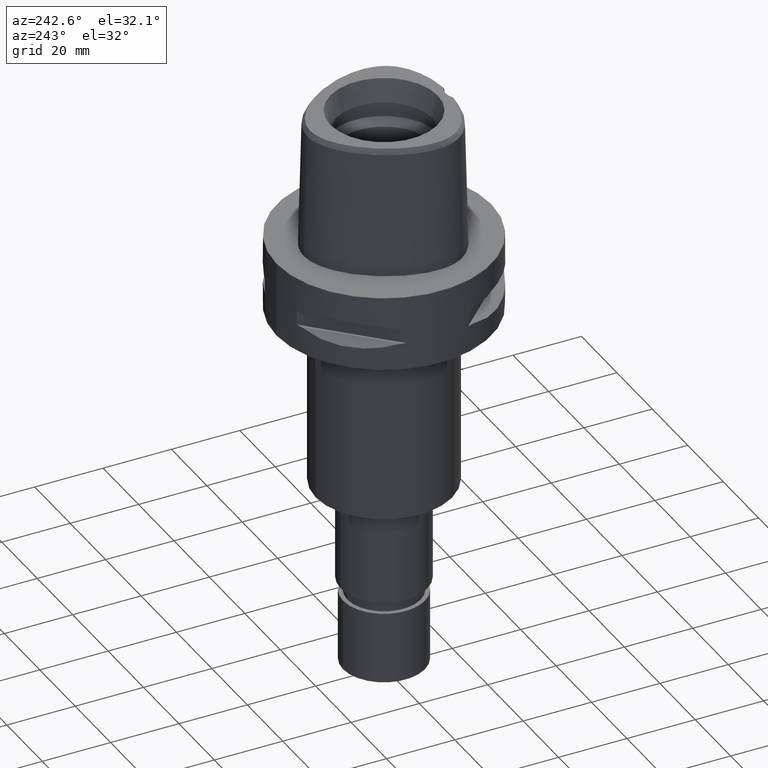
[diagram: clean part render]
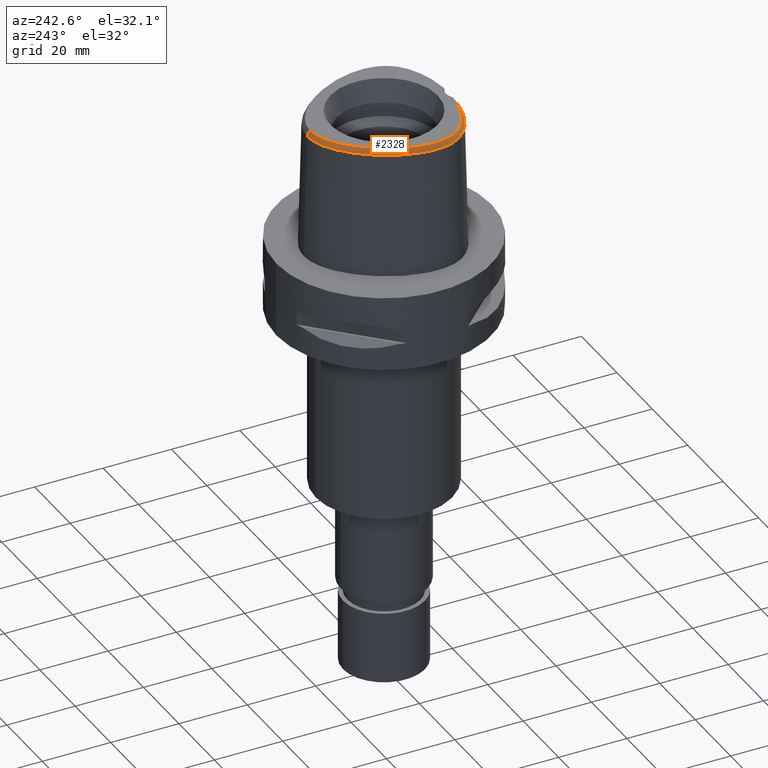
[diagram: same view with one face highlighted and labeled with its STEP entity id]
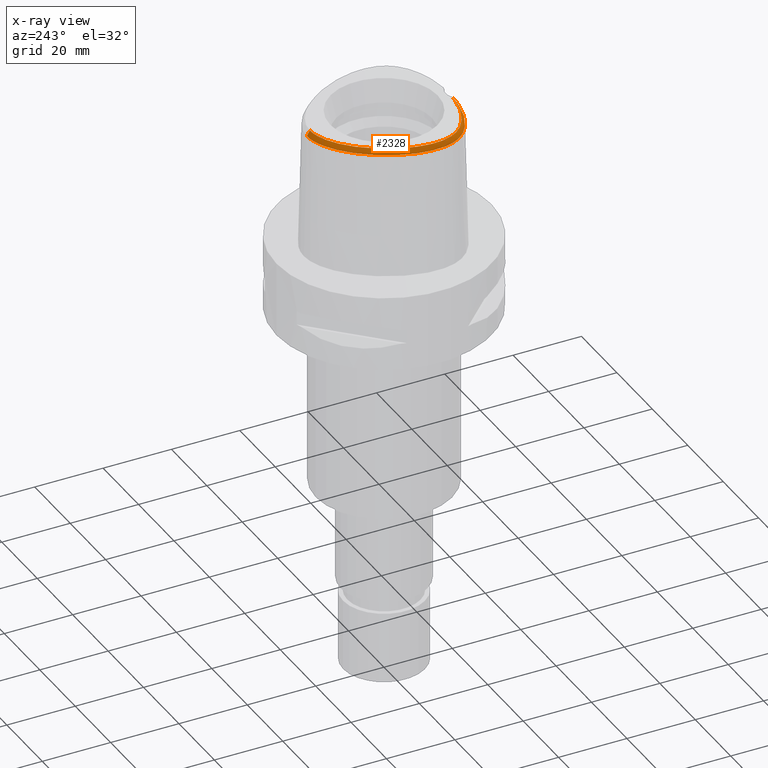
[diagram: x-ray of the same camera — body ghosted, the highlighted face saturated]
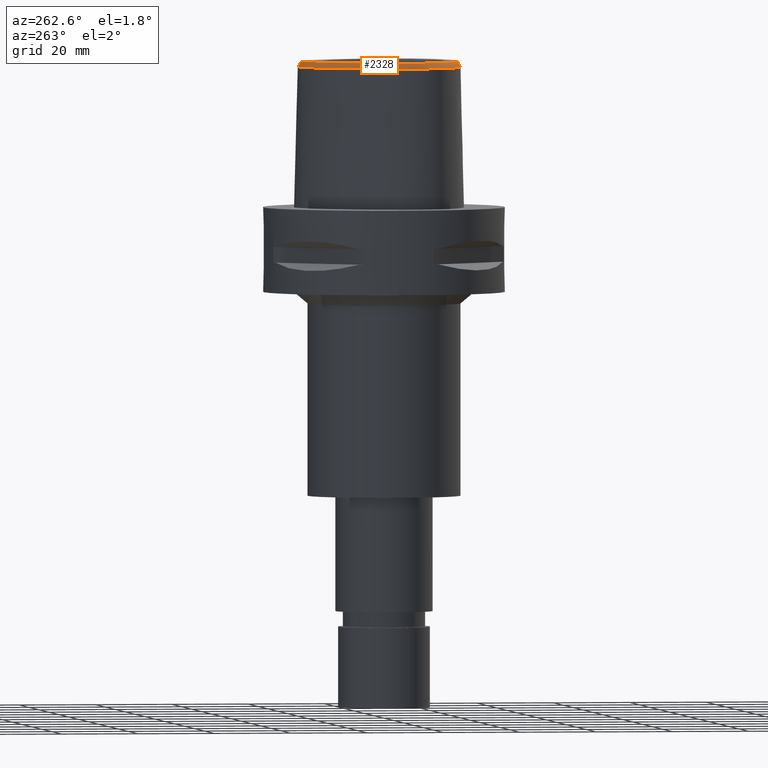
[diagram: same view with one face highlighted and labeled with its STEP entity id]
A machine part, auxiliary view. The second image highlights one B-rep face of the part: STEP entity #2328.
The next image is the same camera in x-ray: the body ghosted, the highlighted face saturated — about 0% of this face is hidden behind the body in this view.
A second angle (auxiliary view) of the same face is appended — the face is thin or edge-on in the first view.
In plain terms, the highlighted face is a freeform B-spline surface patch.
Its self-contained STEP definition (entity closure, byte-faithful):
#34=CARTESIAN_POINT('',(-2.682279906005E0,-1.878035848610E1,3.8E1));
#35=CARTESIAN_POINT('',(-3.581033632346E0,-1.870842610940E1,3.8E1));
#36=CARTESIAN_POINT('',(-5.296895999913E0,-1.849905146038E1,3.8E1));
#37=CARTESIAN_POINT('',(-7.685183829589E0,-1.800849905179E1,3.8E1));
#38=CARTESIAN_POINT('',(-9.720771337483E0,-1.741640543486E1,3.8E1));
#39=CARTESIAN_POINT('',(-1.149451917984E1,-1.674960232655E1,3.8E1));
#40=CARTESIAN_POINT('',(-1.309320880070E1,-1.599773148590E1,3.8E1));
#41=CARTESIAN_POINT('',(-1.453850266553E1,-1.515722875674E1,3.8E1));
#42=CARTESIAN_POINT('',(-1.578553739558E1,-1.426491936918E1,3.8E1));
#43=CARTESIAN_POINT('',(-1.682805215259E1,-1.335253492330E1,3.8E1));
#44=CARTESIAN_POINT('',(-1.769237732448E1,-1.242644257241E1,3.8E1));
#45=CARTESIAN_POINT('',(-1.839813952926E1,-1.149359106538E1,3.8E1));
#46=CARTESIAN_POINT('',(-1.897579344600E1,-1.053513049665E1,3.8E1));
#47=CARTESIAN_POINT('',(-1.946017900295E1,-9.494047453883E0,3.8E1));
#48=CARTESIAN_POINT('',(-1.986149102239E1,-8.328354201316E0,3.8E1));
#49=CARTESIAN_POINT('',(-2.016637981519E1,-7.023453910905E0,3.8E1));
#50=CARTESIAN_POINT('',(-2.035997281465E1,-5.554589756597E0,3.8E1));
#51=CARTESIAN_POINT('',(-2.041634362561E1,-3.915509615332E0,3.8E1));
#52=CARTESIAN_POINT('',(-2.032096577095E1,-2.193756906184E0,3.8E1));
#53=CARTESIAN_POINT('',(-2.006841841181E1,-3.635727318218E-1,3.8E1));
#54=CARTESIAN_POINT('',(-1.963687375141E1,1.618197539285E0,3.8E1));
#55=CARTESIAN_POINT('',(-1.895930405091E1,3.863967492561E0,3.8E1));
#56=CARTESIAN_POINT('',(-1.801105530745E1,6.268459519330E0,3.8E1));
#57=CARTESIAN_POINT('',(-1.683066373707E1,8.670336546881E0,3.8E1));
#58=CARTESIAN_POINT('',(-1.544948284181E1,1.099156094956E1,3.8E1));
#59=CARTESIAN_POINT('',(-1.391069721256E1,1.316090024534E1,3.8E1));
#60=CARTESIAN_POINT('',(-1.228767653543E1,1.509111200333E1,3.8E1));
#61=CARTESIAN_POINT('',(-1.072826750302E1,1.666671300340E1,3.8E1));
#62=CARTESIAN_POINT('',(-9.246767756958E0,1.794929975472E1,3.8E1));
#63=CARTESIAN_POINT('',(-7.795441401697E0,1.901859490771E1,3.8E1));
#64=CARTESIAN_POINT('',(-6.347018265173E0,1.990819694629E1,3.8E1));
#65=CARTESIAN_POINT('',(-4.926962864640E0,2.060984324959E1,3.8E1));
#66=CARTESIAN_POINT('',(-3.582813724723E0,2.111837064672E1,3.8E1));
#67=CARTESIAN_POINT('',(-2.324294981468E0,2.145537092580E1,3.8E1));
#68=CARTESIAN_POINT('',(-1.137912019530E0,2.164625887090E1,3.8E1));
#69=CARTESIAN_POINT('',(-3.736696491837E-1,2.168728795389E1,3.8E1));
#70=CARTESIAN_POINT('',(-3.470944899452E-11,2.168728795390E1,3.8E1));
#182=CARTESIAN_POINT('',(-2.682279906005E0,-1.878035848610E1,3.8E1));
#183=CARTESIAN_POINT('',(-2.795758654787E0,-1.885249299483E1,3.786319539838E1));
#184=CARTESIAN_POINT('',(-3.018631758239E0,-1.900705370838E1,3.757102078228E1));
#185=CARTESIAN_POINT('',(-3.337323225536E0,-1.926900378730E1,3.707980119574E1));
#186=CARTESIAN_POINT('',(-3.539775253109E0,-1.946582670736E1,3.671396671414E1));
#187=CARTESIAN_POINT('',(-3.637738201364E0,-1.956971413237E1,3.652186244848E1));
#192=CARTESIAN_POINT('',(-3.637738201364E0,-1.956971413237E1,3.652186244848E1));
#193=CARTESIAN_POINT('',(-4.560158907346E0,-1.947143337625E1,3.652183460621E1));
#194=CARTESIAN_POINT('',(-6.332490901644E0,-1.920572733587E1,3.652188379830E1));
#195=CARTESIAN_POINT('',(-8.740534769296E0,-1.863605197490E1,3.652185473939E1));
#196=CARTESIAN_POINT('',(-1.078875333779E1,-1.797109471699E1,3.652187883629E1));
#197=CARTESIAN_POINT('',(-1.260106402785E1,-1.721902815734E1,3.652186366389E1));
#198=CARTESIAN_POINT('',(-1.425647951327E1,-1.635855614140E1,3.652186983084E1));
#199=CARTESIAN_POINT('',(-1.570742126751E1,-1.542180822191E1,3.652187070094E1));
#200=CARTESIAN_POINT('',(-1.692838495225E1,-1.445243579093E1,3.652186371196E1));
#201=CARTESIAN_POINT('',(-1.794807955122E1,-1.346119101780E1,3.652187504976E1));
#202=CARTESIAN_POINT('',(-1.879347921895E1,-1.244911691061E1,3.652185110221E1));
#203=CARTESIAN_POINT('',(-1.948233597599E1,-1.142172722407E1,3.652186520296E1));
#204=CARTESIAN_POINT('',(-2.005025596415E1,-1.033879974977E1,3.652187120918E1));
#205=CARTESIAN_POINT('',(-2.052689249114E1,-9.137426659141E0,3.652187389002E1));
#206=CARTESIAN_POINT('',(-2.090372515842E1,-7.793064566768E0,3.652186861290E1));
#207=CARTESIAN_POINT('',(-2.116402580445E1,-6.298266466778E0,3.652186520813E1));
#208=CARTESIAN_POINT('',(-2.128915805881E1,-4.610628511458E0,3.652187207782E1));
#209=CARTESIAN_POINT('',(-2.124899103472E1,-2.770628323703E0,3.652186448572E1));
#210=CARTESIAN_POINT('',(-2.103746568196E1,-8.521470214658E-1,
3.652186904573E1));
#211=CARTESIAN_POINT('',(-2.064453108235E1,1.191621979844E0,3.652186470490E1));
#212=CARTESIAN_POINT('',(-2.000834842177E1,3.491890258725E0,3.652186280489E1));
#213=CARTESIAN_POINT('',(-1.908297293211E1,5.996252166364E0,3.652187047901E1));
#214=CARTESIAN_POINT('',(-1.790343325696E1,8.519299290575E0,3.652185757552E1));
#215=CARTESIAN_POINT('',(-1.649956399231E1,1.097698504016E1,3.652186524308E1));
#216=CARTESIAN_POINT('',(-1.492053239747E1,1.328144481386E1,3.652186970709E1));
#217=CARTESIAN_POINT('',(-1.322428615311E1,1.536354361130E1,3.652186377725E1));
#218=CARTESIAN_POINT('',(-1.153399233131E1,1.711359257375E1,3.652186042581E1));
#219=CARTESIAN_POINT('',(-9.949618507775E0,1.850927678704E1,3.652187154028E1));
#220=CARTESIAN_POINT('',(-8.389884192782E0,1.967566957136E1,3.652186493940E1));
#221=CARTESIAN_POINT('',(-6.831967983638E0,2.064216380886E1,3.652187265771E1));
#222=CARTESIAN_POINT('',(-5.310871754551E0,2.139896711785E1,3.652186762590E1));
#223=CARTESIAN_POINT('',(-3.868196932843E0,2.194740320780E1,3.652186656051E1));
#224=CARTESIAN_POINT('',(-2.510941578303E0,2.231222700870E1,3.652187435400E1));
#225=CARTESIAN_POINT('',(-1.219201044760E0,2.251876035111E1,3.652180035304E1));
#226=CARTESIAN_POINT('',(-4.071750475777E-1,2.256201468012E1,3.652186680743E1));
#227=CARTESIAN_POINT('',(-1.721533821430E-11,2.256201468012E1,
3.652186680744E1));
#232=DIRECTION('',(-1.018542264983E-11,-5.092834681090E-1,8.605988316927E-1));
#233=VECTOR('',#232,1.717563559379E0);
#234=CARTESIAN_POINT('',(-1.721533821430E-11,2.256201468012E1,
3.652186680744E1));
#235=LINE('',#234,#233);
#239=CARTESIAN_POINT('',(-3.637738201364E0,-1.956971413237E1,3.652186244848E1));
#1585=CARTESIAN_POINT('',(-2.682279906007E0,-1.878035848610E1,3.8E1));
#1587=VERTEX_POINT('',#1585);
#1590=VERTEX_POINT('',#70);
#1601=VERTEX_POINT('',#239);
#1602=CARTESIAN_POINT('',(-1.721533821430E-11,2.256201468012E1,
3.652186680744E1));
#1603=VERTEX_POINT('',#1602);
#2072=CARTESIAN_POINT('',(5.881146186496E-1,2.155492564373E1,3.819712059668E1));
#2073=CARTESIAN_POINT('',(6.086003124611E-1,2.192369050687E1,3.757298327064E1));
#2074=CARTESIAN_POINT('',(6.290860062726E-1,2.229245537E1,3.694884594460E1));
#2075=CARTESIAN_POINT('',(6.495717000841E-1,2.266122023314E1,3.632470861857E1));
#2076=CARTESIAN_POINT('',(3.870022067716E-1,2.156531915041E1,3.819712053891E1));
#2077=CARTESIAN_POINT('',(4.007257356409E-1,2.193447609883E1,3.757298339577E1));
#2078=CARTESIAN_POINT('',(4.144492645101E-1,2.230363304725E1,3.694884625263E1));
#2079=CARTESIAN_POINT('',(4.281727933794E-1,2.267278999567E1,3.632470910949E1));
#2080=CARTESIAN_POINT('',(-2.530560245784E-2,2.157659429463E1,
3.819712049908E1));
#2081=CARTESIAN_POINT('',(-2.610917299454E-2,2.194616183287E1,
3.757298348205E1));
#2082=CARTESIAN_POINT('',(-2.691274353124E-2,2.231572937112E1,
3.694884646503E1));
#2083=CARTESIAN_POINT('',(-2.771631406794E-2,2.268529690936E1,
3.632470944800E1));
#2084=CARTESIAN_POINT('',(-6.425851668436E-1,2.155728472357E1,
3.819712056729E1));
#2085=CARTESIAN_POINT('',(-6.657427740693E-1,2.192614909446E1,
3.757298333429E1));
#2086=CARTESIAN_POINT('',(-6.889003812949E-1,2.229501346534E1,
3.694884610128E1));
#2087=CARTESIAN_POINT('',(-7.120579885206E-1,2.266387783623E1,
3.632470886828E1));
#2088=CARTESIAN_POINT('',(-1.309163881031E0,2.149516861359E1,3.819712060906E1));
#2089=CARTESIAN_POINT('',(-1.355108569075E0,2.186188579666E1,3.757298324381E1));
#2090=CARTESIAN_POINT('',(-1.401053257120E0,2.222860297973E1,3.694884587857E1));
#2091=CARTESIAN_POINT('',(-1.446997945164E0,2.259532016280E1,3.632470851332E1));
#2092=CARTESIAN_POINT('',(-1.995451209940E0,2.138809580240E1,3.819712054008E1));
#2093=CARTESIAN_POINT('',(-2.063760249049E0,2.175130669348E1,3.757298339324E1));
#2094=CARTESIAN_POINT('',(-2.132069288157E0,2.211451758456E1,3.694884624640E1));
#2095=CARTESIAN_POINT('',(-2.200378327266E0,2.247772847564E1,3.632470909956E1));
#2096=CARTESIAN_POINT('',(-2.707245596687E0,2.123239070980E1,3.819712046764E1));
#2097=CARTESIAN_POINT('',(-2.797334409701E0,2.159081365361E1,3.757298355018E1));
#2098=CARTESIAN_POINT('',(-2.887423222716E0,2.194923659742E1,3.694884663273E1));
#2099=CARTESIAN_POINT('',(-2.977512035730E0,2.230765954124E1,3.632470971528E1));
#2100=CARTESIAN_POINT('',(-3.445893782799E0,2.102378859681E1,3.819712048326E1));
#2101=CARTESIAN_POINT('',(-3.557104068800E0,2.137622302183E1,3.757298351631E1));
#2102=CARTESIAN_POINT('',(-3.668314354802E0,2.172865744685E1,3.694884654936E1));
#2103=CARTESIAN_POINT('',(-3.779524640804E0,2.208109187187E1,3.632470958242E1));
#2104=CARTESIAN_POINT('',(-4.213001139977E0,2.075753412769E1,3.819712054148E1));
#2105=CARTESIAN_POINT('',(-4.344585066537E0,2.110287147321E1,3.757298339021E1));
#2106=CARTESIAN_POINT('',(-4.476168993097E0,2.144820881872E1,3.694884623893E1));
#2107=CARTESIAN_POINT('',(-4.607752919656E0,2.179354616424E1,3.632470908766E1));
#2108=CARTESIAN_POINT('',(-5.010483071430E0,2.042794996212E1,3.819712047826E1));
#2109=CARTESIAN_POINT('',(-5.161632608433E0,2.076517410657E1,3.757298352715E1));
#2110=CARTESIAN_POINT('',(-5.312782145436E0,2.110239825103E1,3.694884657605E1));
#2111=CARTESIAN_POINT('',(-5.463931682439E0,2.143962239549E1,3.632470962494E1));
#2112=CARTESIAN_POINT('',(-5.839905439890E0,2.002869795237E1,3.819712046142E1));
#2113=CARTESIAN_POINT('',(-6.009738105652E0,2.035690112058E1,3.757298356365E1));
#2114=CARTESIAN_POINT('',(-6.179570771414E0,2.068510428879E1,3.694884666587E1));
#2115=CARTESIAN_POINT('',(-6.349403437177E0,2.101330745700E1,3.632470976810E1));
#2116=CARTESIAN_POINT('',(-6.700174966968E0,1.955400235270E1,3.819712053769E1));
#2117=CARTESIAN_POINT('',(-6.887804434349E0,1.987235756574E1,3.757298339841E1));
#2118=CARTESIAN_POINT('',(-7.075433901729E0,2.019071277877E1,3.694884625914E1));
#2119=CARTESIAN_POINT('',(-7.263063369110E0,2.050906799181E1,3.632470911986E1));
#2120=CARTESIAN_POINT('',(-7.590635809381E0,1.899731763166E1,3.819712053322E1));
#2121=CARTESIAN_POINT('',(-7.795135976279E0,1.930509809371E1,3.757298340809E1));
#2122=CARTESIAN_POINT('',(-7.999636143177E0,1.961287855575E1,3.694884628296E1));
#2123=CARTESIAN_POINT('',(-8.204136310075E0,1.992065901780E1,3.632470915783E1));
#2124=CARTESIAN_POINT('',(-8.508596761114E0,1.835290570132E1,3.819712060186E1));
#2125=CARTESIAN_POINT('',(-8.729044516167E0,1.864946429299E1,3.757298325943E1));
#2126=CARTESIAN_POINT('',(-8.949492271221E0,1.894602288465E1,3.694884591700E1));
#2127=CARTESIAN_POINT('',(-9.169940026274E0,1.924258147632E1,3.632470857456E1));
#2128=CARTESIAN_POINT('',(-9.449960326701E0,1.761565401244E1,3.819712035337E1));
#2129=CARTESIAN_POINT('',(-9.685457947378E0,1.790039970142E1,3.757298379771E1));
#2130=CARTESIAN_POINT('',(-9.920955568055E0,1.818514539039E1,3.694884724206E1));
#2131=CARTESIAN_POINT('',(-1.015645318873E1,1.846989107937E1,3.632471068640E1));
#2132=CARTESIAN_POINT('',(-1.041078702528E1,1.678027360334E1,3.819712005475E1));
#2133=CARTESIAN_POINT('',(-1.066040701160E1,1.705271521063E1,3.757298444461E1));
#2134=CARTESIAN_POINT('',(-1.091002699791E1,1.732515681793E1,3.694884883447E1));
#2135=CARTESIAN_POINT('',(-1.115964698422E1,1.759759842522E1,3.632471322432E1));
#2136=CARTESIAN_POINT('',(-1.138261936161E1,1.584540111276E1,3.819712007846E1));
#2137=CARTESIAN_POINT('',(-1.164548918414E1,1.610507429621E1,3.757298439322E1));
#2138=CARTESIAN_POINT('',(-1.190835900666E1,1.636474747966E1,3.694884870799E1));
#2139=CARTESIAN_POINT('',(-1.217122882919E1,1.662442066311E1,3.632471302275E1));
#2140=CARTESIAN_POINT('',(-1.235423087607E1,1.481343870966E1,3.819712043291E1));
#2141=CARTESIAN_POINT('',(-1.262950049317E1,1.505992270076E1,3.757298362541E1));
#2142=CARTESIAN_POINT('',(-1.290477011026E1,1.530640669186E1,3.694884681792E1));
#2143=CARTESIAN_POINT('',(-1.318003972735E1,1.555289068296E1,3.632471001043E1));
#2144=CARTESIAN_POINT('',(-1.331375292466E1,1.368913724268E1,3.819712059995E1));
#2145=CARTESIAN_POINT('',(-1.360062814837E1,1.392200570547E1,3.757298326354E1));
#2146=CARTESIAN_POINT('',(-1.388750337207E1,1.415487416827E1,3.694884592714E1));
#2147=CARTESIAN_POINT('',(-1.417437859578E1,1.438774263106E1,3.632470859073E1));
#2148=CARTESIAN_POINT('',(-1.425000952949E1,1.247848813243E1,3.819712045138E1));
#2149=CARTESIAN_POINT('',(-1.454768448640E1,1.269737746036E1,3.757298358538E1));
#2150=CARTESIAN_POINT('',(-1.484535944331E1,1.291626678830E1,3.694884671937E1));
#2151=CARTESIAN_POINT('',(-1.514303440022E1,1.313515611623E1,3.632470985337E1));
#2152=CARTESIAN_POINT('',(-1.514973705090E1,1.119258029649E1,3.819712041728E1));
#2153=CARTESIAN_POINT('',(-1.545745976592E1,1.139710019934E1,3.757298365926E1));
#2154=CARTESIAN_POINT('',(-1.576518248093E1,1.160162010218E1,3.694884690124E1));
#2155=CARTESIAN_POINT('',(-1.607290519594E1,1.180614000503E1,3.632471014323E1));
#2156=CARTESIAN_POINT('',(-1.599793005242E1,9.848810828626E0,3.819712053598E1));
#2157=CARTESIAN_POINT('',(-1.631496726785E1,1.003857081405E1,3.757298340214E1));
#2158=CARTESIAN_POINT('',(-1.663200448328E1,1.022833079948E1,3.694884626831E1));
#2159=CARTESIAN_POINT('',(-1.694904169871E1,1.041809078490E1,3.632470913448E1));
#2160=CARTESIAN_POINT('',(-1.678362777425E1,8.462691145752E0,3.819712049158E1));
#2161=CARTESIAN_POINT('',(-1.710928281791E1,8.637248632147E0,3.757298349832E1));
#2162=CARTESIAN_POINT('',(-1.743493786157E1,8.811806118542E0,3.694884650506E1));
#2163=CARTESIAN_POINT('',(-1.776059290522E1,8.986363604936E0,3.632470951180E1));
#2164=CARTESIAN_POINT('',(-1.749892736161E1,7.048566892456E0,3.819712041379E1));
#2165=CARTESIAN_POINT('',(-1.783246920586E1,7.207537920691E0,3.757298366680E1));
#2166=CARTESIAN_POINT('',(-1.816601105011E1,7.366508948926E0,3.694884691982E1));
#2167=CARTESIAN_POINT('',(-1.849955289436E1,7.525479977162E0,3.632471017283E1));
#2168=CARTESIAN_POINT('',(-1.813541688461E1,5.626090014396E0,3.819712049820E1));
#2169=CARTESIAN_POINT('',(-1.847614192410E1,5.769023610714E0,3.757298348395E1));
#2170=CARTESIAN_POINT('',(-1.881686696360E1,5.911957207032E0,3.694884646970E1));
#2171=CARTESIAN_POINT('',(-1.915759200309E1,6.054890803350E0,3.632470945544E1));
#2172=CARTESIAN_POINT('',(-1.868684547992E1,4.216327090106E0,3.819712061243E1));
#2173=CARTESIAN_POINT('',(-1.903403774774E1,4.342752649951E0,3.757298323650E1));
#2174=CARTESIAN_POINT('',(-1.938123001557E1,4.469178209796E0,3.694884586056E1));
#2175=CARTESIAN_POINT('',(-1.972842228340E1,4.595603769642E0,3.632470848463E1));
#2176=CARTESIAN_POINT('',(-1.915177999049E1,2.834016450406E0,3.819712028754E1));
#2177=CARTESIAN_POINT('',(-1.950470827436E1,2.943425192079E0,3.757298394033E1));
#2178=CARTESIAN_POINT('',(-1.985763655823E1,3.052833933752E0,3.694884759313E1));
#2179=CARTESIAN_POINT('',(-2.021056484211E1,3.162242675426E0,3.632471124592E1));
#2180=CARTESIAN_POINT('',(-1.953130831925E1,1.491227735275E0,3.819712002406E1));
#2181=CARTESIAN_POINT('',(-1.988919903961E1,1.583130830926E0,3.757298451107E1));
#2182=CARTESIAN_POINT('',(-2.024708975998E1,1.675033926577E0,3.694884899807E1));
#2183=CARTESIAN_POINT('',(-2.060498048035E1,1.766937022228E0,3.632471348508E1));
#2184=CARTESIAN_POINT('',(-1.982754407446E1,2.009248548460E-1,
3.819712011517E1));
#2185=CARTESIAN_POINT('',(-2.018959311254E1,2.747928357125E-1,
3.757298431373E1));
#2186=CARTESIAN_POINT('',(-2.055164215061E1,3.486608165789E-1,
3.694884851229E1));
#2187=CARTESIAN_POINT('',(-2.091369118869E1,4.225287974454E-1,
3.632471271086E1));
#2188=CARTESIAN_POINT('',(-2.004474096797E1,-1.027165604236E0,
3.819712047651E1));
#2189=CARTESIAN_POINT('',(-2.041009296741E1,-9.718589794746E-1,
3.757298353097E1));
#2190=CARTESIAN_POINT('',(-2.077544496686E1,-9.165523547127E-1,
3.694884658542E1));
#2191=CARTESIAN_POINT('',(-2.114079696631E1,-8.612457299508E-1,
3.632470963988E1));
#2192=CARTESIAN_POINT('',(-2.018883981521E1,-2.188808803387E0,
3.819712059138E1));
#2193=CARTESIAN_POINT('',(-2.055658447264E1,-2.152618614271E0,
3.757298328212E1));
#2194=CARTESIAN_POINT('',(-2.092432913006E1,-2.116428425155E0,
3.694884597286E1));
#2195=CARTESIAN_POINT('',(-2.129207378749E1,-2.080238236039E0,
3.632470866360E1));
#2196=CARTESIAN_POINT('',(-2.026642550804E1,-3.283591320968E0,
3.819712054239E1));
#2197=CARTESIAN_POINT('',(-2.063558004579E1,-3.266979580038E0,
3.757298338826E1));
#2198=CARTESIAN_POINT('',(-2.100473458353E1,-3.250367839107E0,
3.694884623413E1));
#2199=CARTESIAN_POINT('',(-2.137388912127E1,-3.233756098177E0,3.632470908E1));
#2200=CARTESIAN_POINT('',(-2.028389722785E1,-4.310328357565E0,
3.819712051797E1));
#2201=CARTESIAN_POINT('',(-2.065341705135E1,-4.313777211876E0,
3.757298344115E1));
#2202=CARTESIAN_POINT('',(-2.102293687486E1,-4.317226066188E0,
3.694884636432E1));
#2203=CARTESIAN_POINT('',(-2.139245669836E1,-4.320674920500E0,
3.632470928749E1));
#2204=CARTESIAN_POINT('',(-2.024751849762E1,-5.270920517464E0,
3.819712041811E1));
#2205=CARTESIAN_POINT('',(-2.061628777165E1,-5.294826530958E0,
3.757298365745E1));
#2206=CARTESIAN_POINT('',(-2.098505704569E1,-5.318732544453E0,
3.694884689679E1));
#2207=CARTESIAN_POINT('',(-2.135382631972E1,-5.342638557947E0,
3.632471013613E1));
#2208=CARTESIAN_POINT('',(-2.016312792216E1,-6.167802523794E0,
3.819712048286E1));
#2209=CARTESIAN_POINT('',(-2.052996546659E1,-6.212507308574E0,
3.757298351719E1));
#2210=CARTESIAN_POINT('',(-2.089680301102E1,-6.257212093354E0,
3.694884655151E1));
#2211=CARTESIAN_POINT('',(-2.126364055544E1,-6.301916878133E0,
3.632470958584E1));
#2212=CARTESIAN_POINT('',(-2.003604753836E1,-7.003450881571E0,
3.819712056045E1));
#2213=CARTESIAN_POINT('',(-2.039970463311E1,-7.069235770501E0,
3.757298334913E1));
#2214=CARTESIAN_POINT('',(-2.076336172786E1,-7.135020659431E0,
3.694884613780E1));
#2215=CARTESIAN_POINT('',(-2.112701882260E1,-7.200805548361E0,
3.632470892648E1));
#2216=CARTESIAN_POINT('',(-1.987075703759E1,-7.782414849049E0,
3.819712055379E1));
#2217=CARTESIAN_POINT('',(-2.022993212953E1,-7.869436800255E0,
3.757298336354E1));
#2218=CARTESIAN_POINT('',(-2.058910722147E1,-7.956458751461E0,
3.694884617330E1));
#2219=CARTESIAN_POINT('',(-2.094828231341E1,-8.043480702667E0,
3.632470898305E1));
#2220=CARTESIAN_POINT('',(-1.967102550290E1,-8.508938075742E0,
3.819712054132E1));
#2221=CARTESIAN_POINT('',(-2.002437065368E1,-8.617252793862E0,
3.757298339056E1));
#2222=CARTESIAN_POINT('',(-2.037771580447E1,-8.725567511983E0,
3.694884623981E1));
#2223=CARTESIAN_POINT('',(-2.073106095526E1,-8.833882230103E0,
3.632470908905E1));
#2224=CARTESIAN_POINT('',(-1.943988073621E1,-9.187254919222E0,
3.819712048283E1));
#2225=CARTESIAN_POINT('',(-1.978601275548E1,-9.316802510027E0,
3.757298351727E1));
#2226=CARTESIAN_POINT('',(-2.013214477475E1,-9.446350100832E0,
3.694884655170E1));
#2227=CARTESIAN_POINT('',(-2.047827679402E1,-9.575897691637E0,
3.632470958614E1));
#2228=CARTESIAN_POINT('',(-1.917931777369E1,-9.822127651237E0,
3.819712051581E1));
#2229=CARTESIAN_POINT('',(-1.951684008799E1,-9.972699057747E0,
3.757298344581E1));
#2230=CARTESIAN_POINT('',(-1.985436240230E1,-1.012327046426E1,
3.694884637581E1));
#2231=CARTESIAN_POINT('',(-2.019188471661E1,-1.027384187077E1,
3.632470930580E1));
#2232=CARTESIAN_POINT('',(-1.889176533938E1,-1.041560024431E1,
3.819712057299E1));
#2233=CARTESIAN_POINT('',(-1.921929542640E1,-1.058684232277E1,
3.757298332196E1));
#2234=CARTESIAN_POINT('',(-1.954682551342E1,-1.075808440123E1,
3.694884607092E1));
#2235=CARTESIAN_POINT('',(-1.987435560043E1,-1.092932647968E1,
3.632470881989E1));
#2236=CARTESIAN_POINT('',(-1.857627128765E1,-1.097509279382E1,
3.819712051466E1));
#2237=CARTESIAN_POINT('',(-1.889231315034E1,-1.116671310369E1,
3.757298344832E1));
#2238=CARTESIAN_POINT('',(-1.920835501302E1,-1.135833341355E1,
3.694884638198E1));
#2239=CARTESIAN_POINT('',(-1.952439687570E1,-1.154995372341E1,
3.632470931564E1));
#2240=CARTESIAN_POINT('',(-1.822163669689E1,-1.152129466023E1,
3.819712057289E1));
#2241=CARTESIAN_POINT('',(-1.852510938192E1,-1.173224206405E1,
3.757298332216E1));
#2242=CARTESIAN_POINT('',(-1.882858206694E1,-1.194318946787E1,
3.694884607142E1));
#2243=CARTESIAN_POINT('',(-1.913205475197E1,-1.215413687168E1,
3.632470882069E1));
#2244=CARTESIAN_POINT('',(-1.781850025924E1,-1.206537694372E1,
3.819712046491E1));
#2245=CARTESIAN_POINT('',(-1.810838781266E1,-1.229462872145E1,
3.757298355608E1));
#2246=CARTESIAN_POINT('',(-1.839827536608E1,-1.252388049919E1,
3.694884664724E1));
#2247=CARTESIAN_POINT('',(-1.868816291950E1,-1.275313227693E1,
3.632470973840E1));
#2248=CARTESIAN_POINT('',(-1.736422435763E1,-1.260580938234E1,
3.819712053145E1));
#2249=CARTESIAN_POINT('',(-1.763960352983E1,-1.285229029923E1,
3.757298341195E1));
#2250=CARTESIAN_POINT('',(-1.791498270202E1,-1.309877121613E1,
3.694884629245E1));
#2251=CARTESIAN_POINT('',(-1.819036187422E1,-1.334525213302E1,
3.632470917295E1));
#2252=CARTESIAN_POINT('',(-1.685423942856E1,-1.314300826481E1,
3.819712054915E1));
#2253=CARTESIAN_POINT('',(-1.711432269649E1,-1.340556878422E1,
3.757298337357E1));
#2254=CARTESIAN_POINT('',(-1.737440596442E1,-1.366812930363E1,
3.694884619800E1));
#2255=CARTESIAN_POINT('',(-1.763448923235E1,-1.393068982304E1,
3.632470902242E1));
#2256=CARTESIAN_POINT('',(-1.628322278786E1,-1.367695776147E1,
3.819712056151E1));
#2257=CARTESIAN_POINT('',(-1.652734606784E1,-1.395441003306E1,
3.757298334684E1));
#2258=CARTESIAN_POINT('',(-1.677146934782E1,-1.423186230465E1,
3.694884613216E1));
#2259=CARTESIAN_POINT('',(-1.701559262780E1,-1.450931457624E1,
3.632470891749E1));
#2260=CARTESIAN_POINT('',(-1.564600269642E1,-1.420648031572E1,
3.819712052108E1));
#2261=CARTESIAN_POINT('',(-1.587361465136E1,-1.449762119574E1,
3.757298343438E1));
#2262=CARTESIAN_POINT('',(-1.610122660630E1,-1.478876207577E1,
3.694884634768E1));
#2263=CARTESIAN_POINT('',(-1.632883856124E1,-1.507990295579E1,
3.632470926098E1));
#2264=CARTESIAN_POINT('',(-1.493641716306E1,-1.473029154222E1,
3.819712042150E1));
#2265=CARTESIAN_POINT('',(-1.514709695688E1,-1.503390015167E1,
3.757298365012E1));
#2266=CARTESIAN_POINT('',(-1.535777675071E1,-1.533750876112E1,
3.694884687875E1));
#2267=CARTESIAN_POINT('',(-1.556845654454E1,-1.564111737057E1,
3.632471010737E1));
#2268=CARTESIAN_POINT('',(-1.414892631288E1,-1.524574511240E1,
3.819712047880E1));
#2269=CARTESIAN_POINT('',(-1.434235287268E1,-1.556061779417E1,
3.757298352600E1));
#2270=CARTESIAN_POINT('',(-1.453577943248E1,-1.587549047594E1,
3.694884657319E1));
#2271=CARTESIAN_POINT('',(-1.472920599228E1,-1.619036315771E1,
3.632470962039E1));
#2272=CARTESIAN_POINT('',(-1.327901603597E1,-1.574884989648E1,
3.819712054611E1));
#2273=CARTESIAN_POINT('',(-1.345493972792E1,-1.607381725094E1,
3.757298338018E1));
#2274=CARTESIAN_POINT('',(-1.363086341987E1,-1.639878460539E1,
3.694884621426E1));
#2275=CARTESIAN_POINT('',(-1.380678711181E1,-1.672375195984E1,
3.632470904833E1));
#2276=CARTESIAN_POINT('',(-1.232133278221E1,-1.623558711557E1,
3.819712056054E1));
#2277=CARTESIAN_POINT('',(-1.247962656062E1,-1.656948904739E1,
3.757298334891E1));
#2278=CARTESIAN_POINT('',(-1.263792033903E1,-1.690339097920E1,
3.694884613727E1));
#2279=CARTESIAN_POINT('',(-1.279621411744E1,-1.723729291102E1,
3.632470892563E1));
#2280=CARTESIAN_POINT('',(-1.127351300157E1,-1.670003983514E1,
3.819712056895E1));
#2281=CARTESIAN_POINT('',(-1.141408225140E1,-1.704177472901E1,
3.757298333070E1));
#2282=CARTESIAN_POINT('',(-1.155465150123E1,-1.738350962288E1,
3.694884609244E1));
#2283=CARTESIAN_POINT('',(-1.169522075106E1,-1.772524451675E1,
3.632470885419E1));
#2284=CARTESIAN_POINT('',(-1.013256674463E1,-1.713637731157E1,
3.819712022553E1));
#2285=CARTESIAN_POINT('',(-1.025539906170E1,-1.748487369001E1,
3.757298407465E1));
#2286=CARTESIAN_POINT('',(-1.037823137876E1,-1.783337006845E1,
3.694884792376E1));
#2287=CARTESIAN_POINT('',(-1.050106369583E1,-1.818186644690E1,
3.632471177288E1));
#2288=CARTESIAN_POINT('',(-8.896895234723E0,-1.753812533634E1,
3.819712003363E1));
#2289=CARTESIAN_POINT('',(-9.002017952155E0,-1.789236035940E1,
3.757298449035E1));
#2290=CARTESIAN_POINT('',(-9.107140669587E0,-1.824659538246E1,
3.694884894707E1));
#2291=CARTESIAN_POINT('',(-9.212263387018E0,-1.860083040553E1,
3.632471340380E1));
#2292=CARTESIAN_POINT('',(-7.571748254273E0,-1.789672464076E1,
3.819712018031E1));
#2293=CARTESIAN_POINT('',(-7.659207811908E0,-1.825572381157E1,
3.757298417261E1));
#2294=CARTESIAN_POINT('',(-7.746667369542E0,-1.861472298238E1,
3.694884816491E1));
#2295=CARTESIAN_POINT('',(-7.834126927176E0,-1.897372215319E1,
3.632471215721E1));
#2296=CARTESIAN_POINT('',(-6.166315259602E0,-1.820371332680E1,
3.819712055961E1));
#2297=CARTESIAN_POINT('',(-6.236166174800E0,-1.856654605183E1,
3.757298335092E1));
#2298=CARTESIAN_POINT('',(-6.306017089999E0,-1.892937877687E1,
3.694884614222E1));
#2299=CARTESIAN_POINT('',(-6.375868005197E0,-1.929221150191E1,
3.632470893352E1));
#2300=CARTESIAN_POINT('',(-4.690480649306E0,-1.845169663241E1,
3.819712053443E1));
#2301=CARTESIAN_POINT('',(-4.742767746742E0,-1.881747031009E1,
3.757298340549E1));
#2302=CARTESIAN_POINT('',(-4.795054844178E0,-1.918324398777E1,
3.694884627654E1));
#2303=CARTESIAN_POINT('',(-4.847341941613E0,-1.954901766545E1,
3.632470914760E1));
#2304=CARTESIAN_POINT('',(-3.510628758345E0,-1.859208991646E1,
3.819712043110E1));
#2305=CARTESIAN_POINT('',(-3.549472834472E0,-1.895945727977E1,
3.757298362932E1));
#2306=CARTESIAN_POINT('',(-3.588316910600E0,-1.932682464308E1,
3.694884682754E1));
#2307=CARTESIAN_POINT('',(-3.627160986728E0,-1.969419200638E1,
3.632471002577E1));
#2308=CARTESIAN_POINT('',(-2.629477846240E0,-1.866903704939E1,
3.819712041759E1));
#2309=CARTESIAN_POINT('',(-2.658459275094E0,-1.903726559343E1,
3.757298365859E1));
#2310=CARTESIAN_POINT('',(-2.687440703948E0,-1.940549413746E1,
3.694884689959E1));
#2311=CARTESIAN_POINT('',(-2.716422132803E0,-1.977372268150E1,
3.632471014059E1));
#2312=CARTESIAN_POINT('',(-2.265850314261E0,-1.869477694840E1,
3.819712042381E1));
#2313=CARTESIAN_POINT('',(-2.290793303528E0,-1.906329121886E1,
3.757298364512E1));
#2314=CARTESIAN_POINT('',(-2.315736292796E0,-1.943180548933E1,
3.694884686644E1));
#2315=CARTESIAN_POINT('',(-2.340679282064E0,-1.980031975980E1,
3.632471008775E1));
#2316=CARTESIAN_POINT('',(-2.061445716205E0,-1.870735574386E1,
3.819712043024E1));
#2317=CARTESIAN_POINT('',(-2.084125907551E0,-1.907600923843E1,
3.757298363119E1));
#2318=CARTESIAN_POINT('',(-2.106806098897E0,-1.944466273299E1,
3.694884683215E1));
#2319=CARTESIAN_POINT('',(-2.129486290243E0,-1.981331622755E1,
3.632471003310E1));
#2320=B_SPLINE_SURFACE_WITH_KNOTS('',3,3,((#2072,#2073,#2074,#2075),(#2076,
#2077,#2078,#2079),(#2080,#2081,#2082,#2083),(#2084,#2085,#2086,#2087),(#2088,
#2089,#2090,#2091),(#2092,#2093,#2094,#2095),(#2096,#2097,#2098,#2099),(#2100,
#2101,#2102,#2103),(#2104,#2105,#2106,#2107),(#2108,#2109,#2110,#2111),(#2112,
#2113,#2114,#2115),(#2116,#2117,#2118,#2119),(#2120,#2121,#2122,#2123),(#2124,
#2125,#2126,#2127),(#2128,#2129,#2130,#2131),(#2132,#2133,#2134,#2135),(#2136,
#2137,#2138,#2139),(#2140,#2141,#2142,#2143),(#2144,#2145,#2146,#2147),(#2148,
#2149,#2150,#2151),(#2152,#2153,#2154,#2155),(#2156,#2157,#2158,#2159),(#2160,
#2161,#2162,#2163),(#2164,#2165,#2166,#2167),(#2168,#2169,#2170,#2171),(#2172,
#2173,#2174,#2175),(#2176,#2177,#2178,#2179),(#2180,#2181,#2182,#2183),(#2184,
#2185,#2186,#2187),(#2188,#2189,#2190,#2191),(#2192,#2193,#2194,#2195),(#2196,
#2197,#2198,#2199),(#2200,#2201,#2202,#2203),(#2204,#2205,#2206,#2207),(#2208,
#2209,#2210,#2211),(#2212,#2213,#2214,#2215),(#2216,#2217,#2218,#2219),(#2220,
#2221,#2222,#2223),(#2224,#2225,#2226,#2227),(#2228,#2229,#2230,#2231),(#2232,
#2233,#2234,#2235),(#2236,#2237,#2238,#2239),(#2240,#2241,#2242,#2243),(#2244,
#2245,#2246,#2247),(#2248,#2249,#2250,#2251),(#2252,#2253,#2254,#2255),(#2256,
#2257,#2258,#2259),(#2260,#2261,#2262,#2263),(#2264,#2265,#2266,#2267),(#2268,
#2269,#2270,#2271),(#2272,#2273,#2274,#2275),(#2276,#2277,#2278,#2279),(#2280,
#2281,#2282,#2283),(#2284,#2285,#2286,#2287),(#2288,#2289,#2290,#2291),(#2292,
#2293,#2294,#2295),(#2296,#2297,#2298,#2299),(#2300,#2301,#2302,#2303),(#2304,
#2305,#2306,#2307),(#2308,#2309,#2310,#2311),(#2312,#2313,#2314,#2315),(#2316,
#2317,#2318,#2319)),.UNSPECIFIED.,.F.,.F.,.F.,(4,1,1,1,1,1,1,1,1,1,1,1,1,1,1,1,
1,1,1,1,1,1,1,1,1,1,1,1,1,1,1,1,1,1,1,1,1,1,1,1,1,1,1,1,1,1,1,1,1,1,1,1,1,1,1,1,
1,1,1,4),(4,4),(-1.585043674195E-2,0.E0,1.776034072166E-2,3.552068144392E-2,
5.328102216617E-2,7.104136288843E-2,8.880170361069E-2,1.065620443330E-1,
1.243223850552E-1,1.420827257775E-1,1.598430664997E-1,1.776034072219E-1,
1.953637479442E-1,2.131240886664E-1,2.308844293888E-1,2.486447701110E-1,
2.664051108333E-1,2.841654515555E-1,3.019257922778E-1,3.19686133E-1,
3.374464737223E-1,3.552068144445E-1,3.729671551668E-1,3.907274958891E-1,
4.084878366113E-1,4.262481773336E-1,4.440085180558E-1,4.617688587781E-1,
4.795291995003E-1,4.972895402226E-1,5.150498809448E-1,5.328102216671E-1,
5.505705623894E-1,5.683309031116E-1,5.860912438339E-1,6.038515845561E-1,
6.216119252784E-1,6.393722660006E-1,6.571326067229E-1,6.748929474452E-1,
6.926532881674E-1,7.104136288897E-1,7.281739696119E-1,7.459343103342E-1,
7.636946510564E-1,7.814549917787E-1,7.992153325009E-1,8.169756732232E-1,
8.347360139455E-1,8.524963546678E-1,8.702566953900E-1,8.880170361122E-1,
9.057773768345E-1,9.235377175567E-1,9.412980582790E-1,9.590583990012E-1,
9.768187397236E-1,9.945790804458E-1,1.E0,1.006922200500E0),(-1.089971821211E-1,
1.109016338980E0),.UNSPECIFIED.);
#2321=ORIENTED_EDGE('',*,*,#1809,.T.);
#2323=ORIENTED_EDGE('',*,*,#2322,.T.);
#2324=ORIENTED_EDGE('',*,*,#2065,.T.);
#2325=ORIENTED_EDGE('',*,*,#1779,.F.);
#2326=EDGE_LOOP('',(#2321,#2323,#2324,#2325));
#2327=FACE_OUTER_BOUND('',#2326,.F.);
#71=B_SPLINE_CURVE_WITH_KNOTS('',3,(#34,#35,#36,#37,#38,#39,#40,#41,#42,#43,#44,
#45,#46,#47,#48,#49,#50,#51,#52,#53,#54,#55,#56,#57,#58,#59,#60,#61,#62,#63,#64,
#65,#66,#67,#68,#69,#70),.UNSPECIFIED.,.F.,.F.,(4,1,1,1,1,1,1,1,1,1,1,1,1,1,1,1,
1,1,1,1,1,1,1,1,1,1,1,1,1,1,1,1,1,1,4),(0.E0,2.941176470588E-2,
5.882352941176E-2,8.823529411765E-2,1.176470588235E-1,1.470588235294E-1,
1.764705882353E-1,2.058823529412E-1,2.352941176471E-1,2.647058823529E-1,
2.941176470588E-1,3.235294117647E-1,3.529411764706E-1,3.823529411765E-1,
4.117647058824E-1,4.411764705882E-1,4.705882352941E-1,5.E-1,5.294117647059E-1,
5.588235294118E-1,5.882352941176E-1,6.176470588235E-1,6.470588235294E-1,
6.764705882353E-1,7.058823529412E-1,7.352941176471E-1,7.647058823529E-1,
7.941176470588E-1,8.235294117647E-1,8.529411764706E-1,8.823529411765E-1,
9.117647058824E-1,9.411764705882E-1,9.705882352941E-1,1.E0),.UNSPECIFIED.);
#188=B_SPLINE_CURVE_WITH_KNOTS('',3,(#182,#183,#184,#185,#186,#187),
.UNSPECIFIED.,.F.,.F.,(4,1,1,4),(0.E0,3.333333333333E-1,6.666666666667E-1,1.E0),
.UNSPECIFIED.);
#228=B_SPLINE_CURVE_WITH_KNOTS('',3,(#192,#193,#194,#195,#196,#197,#198,#199,
#200,#201,#202,#203,#204,#205,#206,#207,#208,#209,#210,#211,#212,#213,#214,#215,
#216,#217,#218,#219,#220,#221,#222,#223,#224,#225,#226,#227),.UNSPECIFIED.,.F.,
.F.,(4,1,1,1,1,1,1,1,1,1,1,1,1,1,1,1,1,1,1,1,1,1,1,1,1,1,1,1,1,1,1,1,1,4),(0.E0,
3.030303030303E-2,6.060606060606E-2,9.090909090909E-2,1.212121212121E-1,
1.515151515152E-1,1.818181818182E-1,2.121212121212E-1,2.424242424242E-1,
2.727272727273E-1,3.030303030303E-1,3.333333333333E-1,3.636363636364E-1,
3.939393939394E-1,4.242424242424E-1,4.545454545455E-1,4.848484848485E-1,
5.151515151515E-1,5.454545454545E-1,5.757575757576E-1,6.060606060606E-1,
6.363636363636E-1,6.666666666667E-1,6.969696969697E-1,7.272727272727E-1,
7.575757575758E-1,7.878787878788E-1,8.181818181818E-1,8.484848484848E-1,
8.787878787879E-1,9.090909090909E-1,9.393939393939E-1,9.696969696970E-1,1.E0),
.UNSPECIFIED.);
#1779=EDGE_CURVE('',#1587,#1590,#71,.T.);
#1809=EDGE_CURVE('',#1587,#1601,#188,.T.);
#2065=EDGE_CURVE('',#1603,#1590,#235,.T.);
#2322=EDGE_CURVE('',#1601,#1603,#228,.T.);
#2328=ADVANCED_FACE('',(#2327),#2320,.F.);